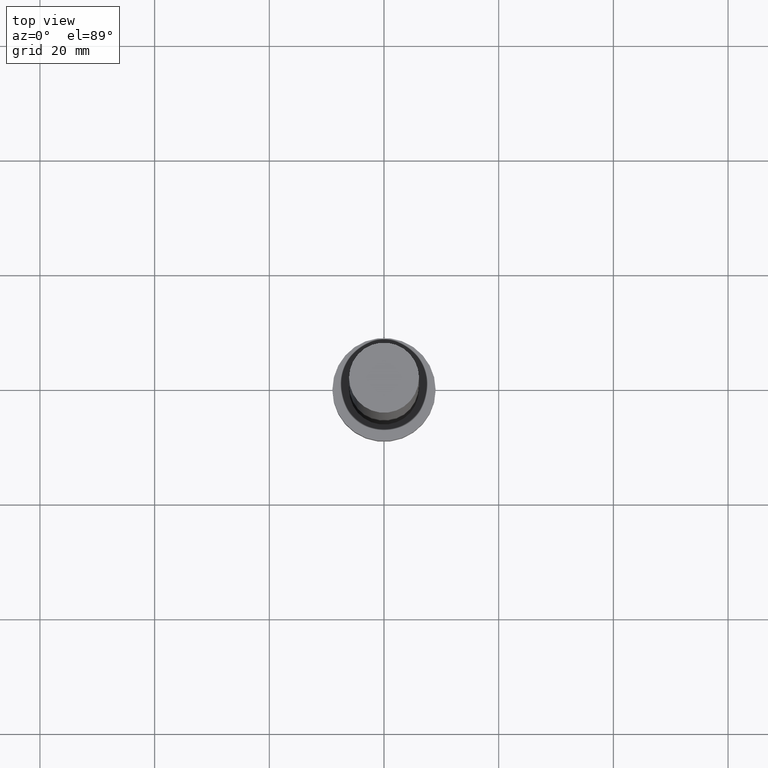
[diagram: clean part render]
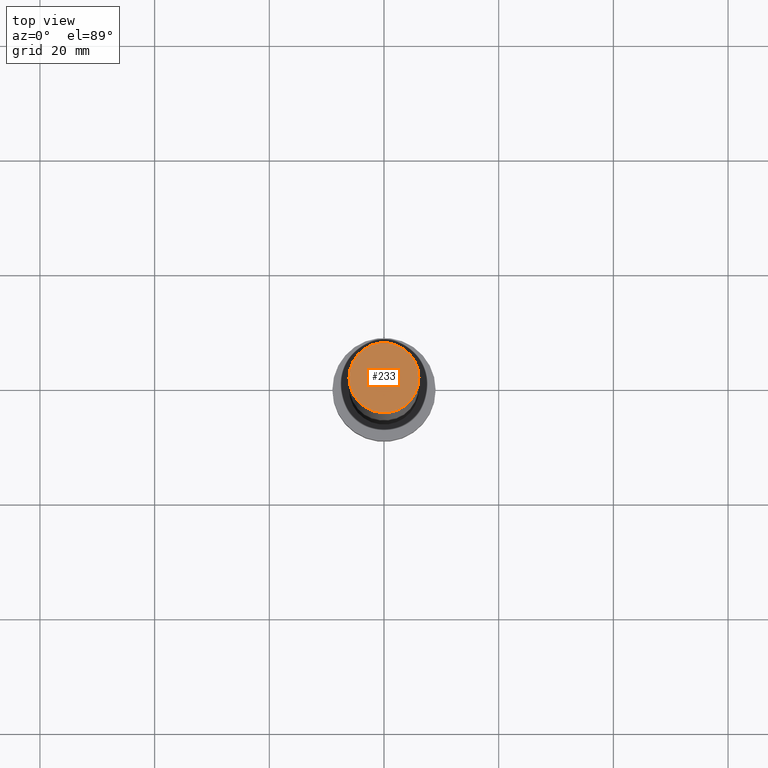
[diagram: same view with one face highlighted and labeled with its STEP entity id]
A machine part, top view. The second image highlights one B-rep face of the part: STEP entity #233.
In plain terms, the highlighted planar face has unit normal (0, 0, 1).
Its self-contained STEP definition (entity closure, byte-faithful):
#2 = VERTEX_POINT ( 'NONE', #203 ) ;
#5 = ORIENTED_EDGE ( 'NONE', *, *, #19, .T. ) ;
#9 = VERTEX_POINT ( 'NONE', #216 ) ;
#19 = EDGE_CURVE ( 'NONE', #2, #9, #249, .T. ) ;
#24 = AXIS2_PLACEMENT_3D ( 'NONE', #194, #99, #117 ) ;
#52 = DIRECTION ( 'NONE',  ( 1.000000000000000000, 0.000000000000000000, -0.000000000000000000 ) ) ;
#56 = EDGE_LOOP ( 'NONE', ( #5, #79 ) ) ;
#79 = ORIENTED_EDGE ( 'NONE', *, *, #229, .T. ) ;
#80 = CIRCLE ( 'NONE', #199, 6.099999999999999645 ) ;
#84 = FACE_OUTER_BOUND ( 'NONE', #56, .T. ) ;
#99 = DIRECTION ( 'NONE',  ( 0.000000000000000000, 0.000000000000000000, 1.000000000000000000 ) ) ;
#103 = DIRECTION ( 'NONE',  ( 1.000000000000000000, 0.000000000000000000, 0.000000000000000000 ) ) ;
#117 = DIRECTION ( 'NONE',  ( 1.000000000000000000, 0.000000000000000000, 0.000000000000000000 ) ) ;
#125 = DIRECTION ( 'NONE',  ( 0.000000000000000000, 0.000000000000000000, 1.000000000000000000 ) ) ;
#151 = CARTESIAN_POINT ( 'NONE',  ( 0.000000000000000000, 0.000000000000000000, 125.0000000000000000 ) ) ;
#167 = CARTESIAN_POINT ( 'NONE',  ( 0.000000000000000000, 0.000000000000000000, 125.0000000000000000 ) ) ;
#174 = AXIS2_PLACEMENT_3D ( 'NONE', #151, #232, #52 ) ;
#194 = CARTESIAN_POINT ( 'NONE',  ( 0.000000000000000000, 0.000000000000000000, 125.0000000000000000 ) ) ;
#199 = AXIS2_PLACEMENT_3D ( 'NONE', #167, #125, #103 ) ;
#203 = CARTESIAN_POINT ( 'NONE',  ( -6.099999999999999645, 0.000000000000000000, 125.0000000000000000 ) ) ;
#216 = CARTESIAN_POINT ( 'NONE',  ( 6.099999999999999645, 7.470345474798854293E-16, 125.0000000000000000 ) ) ;
#229 = EDGE_CURVE ( 'NONE', #9, #2, #80, .T. ) ;
#232 = DIRECTION ( 'NONE',  ( 0.000000000000000000, 0.000000000000000000, 1.000000000000000000 ) ) ;
#233 = ADVANCED_FACE ( 'NONE', ( #84 ), #253, .T. ) ;
#249 = CIRCLE ( 'NONE', #24, 6.099999999999999645 ) ;
#253 = PLANE ( 'NONE',  #174 ) ;